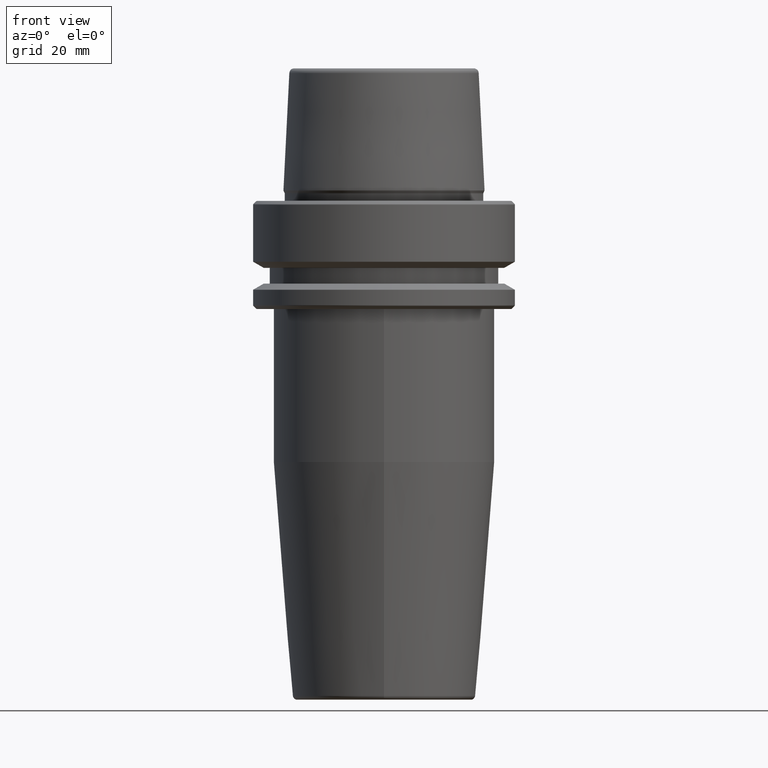
[diagram: clean part render]
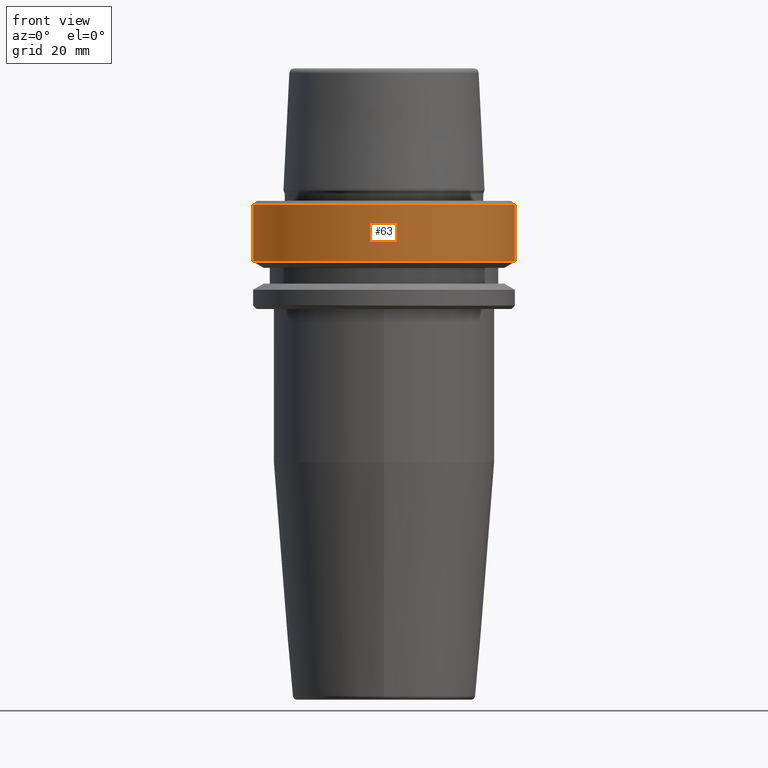
[diagram: same view with one face highlighted and labeled with its STEP entity id]
A machine part, front view. The second image highlights one B-rep face of the part: STEP entity #63.
In plain terms, the highlighted cylindrical surface (partial cylindrical patch) has radius 31.5 mm, axis along (-0, -0, 1).
Its self-contained STEP definition (entity closure, byte-faithful):
#63 = ADVANCED_FACE ( 'NONE', ( #809 ), #639, .T. ) ;
#83 = LINE ( 'NONE', #285, #880 ) ;
#109 = CARTESIAN_POINT ( 'NONE',  ( -31.50000000000000000, 3.857637417314162700E-015, 78.96908074195309300 ) ) ;
#112 = DIRECTION ( 'NONE',  ( 1.000000000000000000, 0.0000000000000000000, 0.0000000000000000000 ) ) ;
#217 = LINE ( 'NONE', #109, #607 ) ;
#219 = DIRECTION ( 'NONE',  ( -0.0000000000000000000, -0.0000000000000000000, 1.000000000000000000 ) ) ;
#222 = DIRECTION ( 'NONE',  ( -0.0000000000000000000, -0.0000000000000000000, 1.000000000000000000 ) ) ;
#228 = EDGE_CURVE ( 'NONE', #1025, #692, #217, .T. ) ;
#239 = ORIENTED_EDGE ( 'NONE', *, *, #228, .F. ) ;
#285 = CARTESIAN_POINT ( 'NONE',  ( 31.50000000000000000, 0.0000000000000000000, 78.96908074195309300 ) ) ;
#292 = CARTESIAN_POINT ( 'NONE',  ( 31.50000000000000000, 0.0000000000000000000, -14.62250092524070100 ) ) ;
#295 = CIRCLE ( 'NONE', #1221, 31.50000000000000700 ) ;
#386 = AXIS2_PLACEMENT_3D ( 'NONE', #669, #638, #724 ) ;
#401 = EDGE_CURVE ( 'NONE', #1025, #1259, #806, .T. ) ;
#432 = CARTESIAN_POINT ( 'NONE',  ( -31.50000000000000700, 3.857637417314163500E-015, -0.9656854249492363700 ) ) ;
#472 = EDGE_LOOP ( 'NONE', ( #239, #769, #779, #759 ) ) ;
#566 = EDGE_CURVE ( 'NONE', #692, #1075, #295, .T. ) ;
#607 = VECTOR ( 'NONE', #968, 1000.000000000000000 ) ;
#638 = DIRECTION ( 'NONE',  ( -0.0000000000000000000, -0.0000000000000000000, 1.000000000000000000 ) ) ;
#639 = CYLINDRICAL_SURFACE ( 'NONE', #1144, 31.50000000000000000 ) ;
#669 = CARTESIAN_POINT ( 'NONE',  ( 0.0000000000000000000, 0.0000000000000000000, -14.62250092524070100 ) ) ;
#692 = VERTEX_POINT ( 'NONE', #432 ) ;
#724 = DIRECTION ( 'NONE',  ( 1.000000000000000000, 0.0000000000000000000, 0.0000000000000000000 ) ) ;
#733 = CARTESIAN_POINT ( 'NONE',  ( 31.50000000000000700, 0.0000000000000000000, -0.9656854249492363700 ) ) ;
#759 = ORIENTED_EDGE ( 'NONE', *, *, #566, .F. ) ;
#769 = ORIENTED_EDGE ( 'NONE', *, *, #401, .T. ) ;
#773 = EDGE_CURVE ( 'NONE', #1259, #1075, #83, .T. ) ;
#779 = ORIENTED_EDGE ( 'NONE', *, *, #773, .T. ) ;
#806 = CIRCLE ( 'NONE', #386, 31.50000000000000000 ) ;
#809 = FACE_OUTER_BOUND ( 'NONE', #472, .T. ) ;
#880 = VECTOR ( 'NONE', #1069, 1000.000000000000000 ) ;
#953 = CARTESIAN_POINT ( 'NONE',  ( 0.0000000000000000000, 0.0000000000000000000, -0.9656854249492363700 ) ) ;
#968 = DIRECTION ( 'NONE',  ( -0.0000000000000000000, -0.0000000000000000000, 1.000000000000000000 ) ) ;
#1025 = VERTEX_POINT ( 'NONE', #1054 ) ;
#1054 = CARTESIAN_POINT ( 'NONE',  ( -31.50000000000000000, 3.857637417314162700E-015, -14.62250092524070100 ) ) ;
#1069 = DIRECTION ( 'NONE',  ( -0.0000000000000000000, -0.0000000000000000000, 1.000000000000000000 ) ) ;
#1075 = VERTEX_POINT ( 'NONE', #733 ) ;
#1091 = DIRECTION ( 'NONE',  ( 1.000000000000000000, 0.0000000000000000000, 0.0000000000000000000 ) ) ;
#1127 = CARTESIAN_POINT ( 'NONE',  ( 0.0000000000000000000, 0.0000000000000000000, 78.96908074195309300 ) ) ;
#1144 = AXIS2_PLACEMENT_3D ( 'NONE', #1127, #222, #1091 ) ;
#1221 = AXIS2_PLACEMENT_3D ( 'NONE', #953, #219, #112 ) ;
#1259 = VERTEX_POINT ( 'NONE', #292 ) ;